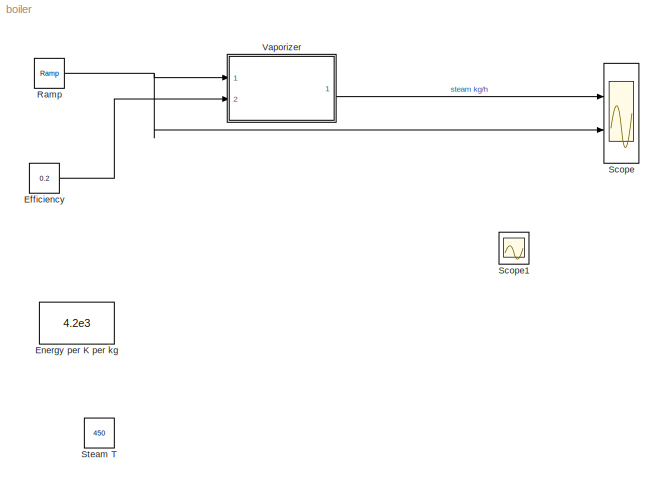
MODEL boiler
KIND model
BLOCK [Constant] Efficiency
  SID = 17
  Value = 0.2
BLOCK [Constant] Energy per K per kg
  SID = 15
  Value = 4.2e3
BLOCK [Reference] Ramp  REF=simulink/Sources/Ramp
  Ports = [0, 1]
  SID = 33
  SourceBlock = simulink/Sources/Ramp
  SourceType = Ramp
  VectorParams1D = on
  X0 = 0
  slope = 5e9
  start = 0
BLOCK [Scope] Scope
  DataFormat = StructureWithTime
  Floating = off
  NumInputPorts = 2
  Ports = [2]
  SID = 4
  SampleTime = 0
  TimeRange = 20
  YMax = 25000~5
  YMin = 0~-5
BLOCK [Scope] Scope1
  DataFormat = StructureWithTime
  Floating = off
  NumInputPorts = 1
  Ports = [1]
  SID = 13
  SampleTime = 0
  SaveName = ScopeData1
BLOCK [Constant] Steam T
  SID = 20
  Value = 450
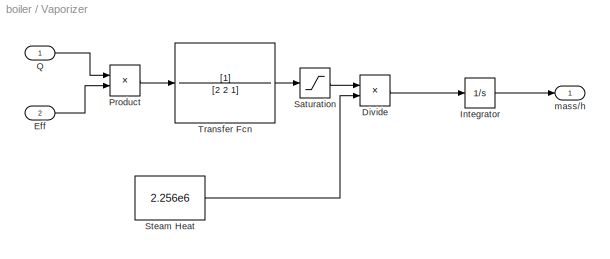
BLOCK [SubSystem] Vaporizer
  FunctionWithSeparateData = off
  MaskHideContents = off
  MinAlgLoopOccurrences = off
  Opaque = off
  Ports = [2, 1]
  PropExecContextOutsideSubsystem = off
  RTWSystemCode = Auto
  RequestExecContextInheritance = off
  SID = 22
  TreatAsAtomicUnit = on
BLOCK [Product] Vaporizer/Divide
  InputSameDT = off
  Inputs = */
  OutDataTypeStr = Inherit: Inherit via internal rule
  Ports = [2, 1]
  RndMeth = Floor
  SID = 26
  SaturateOnIntegerOverflow = off
BLOCK [Inport] Vaporizer/Eff
  IconDisplay = Port number
  Port = 2
  SID = 25
BLOCK [Integrator] Vaporizer/Integrator
  Ports = [1, 1]
  SID = 27
BLOCK [Product] Vaporizer/Product
  InputSameDT = off
  OutDataTypeStr = Inherit: Inherit via internal rule
  Ports = [2, 1]
  SID = 28
  SaturateOnIntegerOverflow = off
BLOCK [Inport] Vaporizer/Q
  IconDisplay = Port number
  SID = 23
BLOCK [Saturate] Vaporizer/Saturation
  InputPortMap = u0
  LowerLimit = 0
  Ports = [1, 1]
  SID = 32
  UpperLimit = 3e9
BLOCK [Constant] Vaporizer/Steam Heat
  SID = 29
  Value = 2.256e6
BLOCK [TransferFcn] Vaporizer/Transfer Fcn
  Denominator = [2 2 1]
  SID = 30
BLOCK [Outport] Vaporizer/mass//h
  IconDisplay = Port number
  SID = 24
LINE Efficiency:1 -> Vaporizer:2
NET Ramp:1 -> Scope:2, Vaporizer:1
LINE Vaporizer/Divide:1 -> Vaporizer/Integrator:1
LINE Vaporizer/Eff:1 -> Vaporizer/Product:2
LINE Vaporizer/Integrator:1 -> Vaporizer/mass//h:1
LINE Vaporizer/Product:1 -> Vaporizer/Transfer Fcn:1
LINE Vaporizer/Q:1 -> Vaporizer/Product:1
LINE Vaporizer/Saturation:1 -> Vaporizer/Divide:1
LINE Vaporizer/Steam Heat:1 -> Vaporizer/Divide:2
LINE Vaporizer/Transfer Fcn:1 -> Vaporizer/Saturation:1
LINE Vaporizer:1 -> Scope:1
note: NET lines group one-source signal fan-out (src -> all destinations, sorted); 1:1 wires keep LINE
